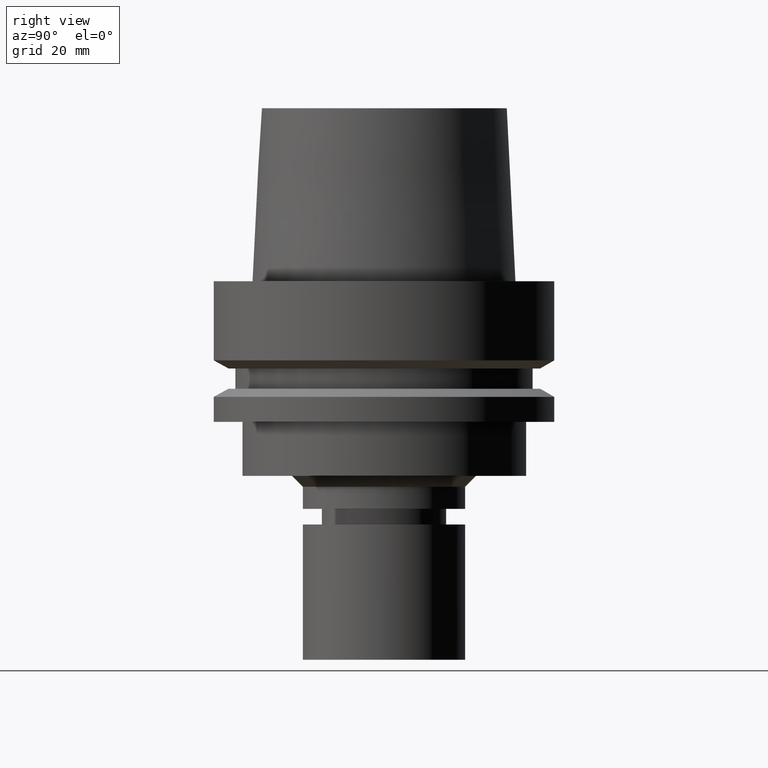
[diagram: clean part render]
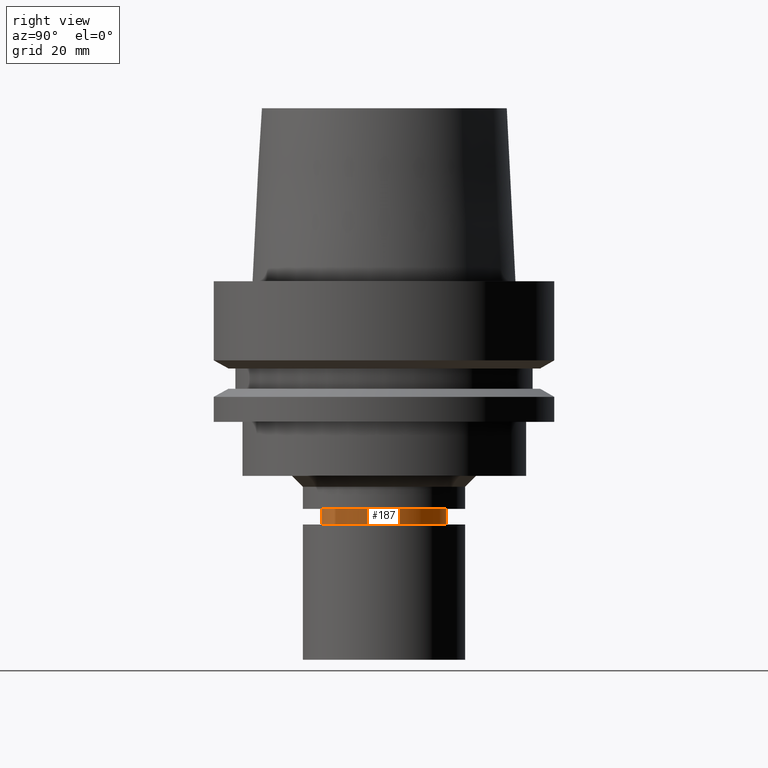
[diagram: same view with one face highlighted and labeled with its STEP entity id]
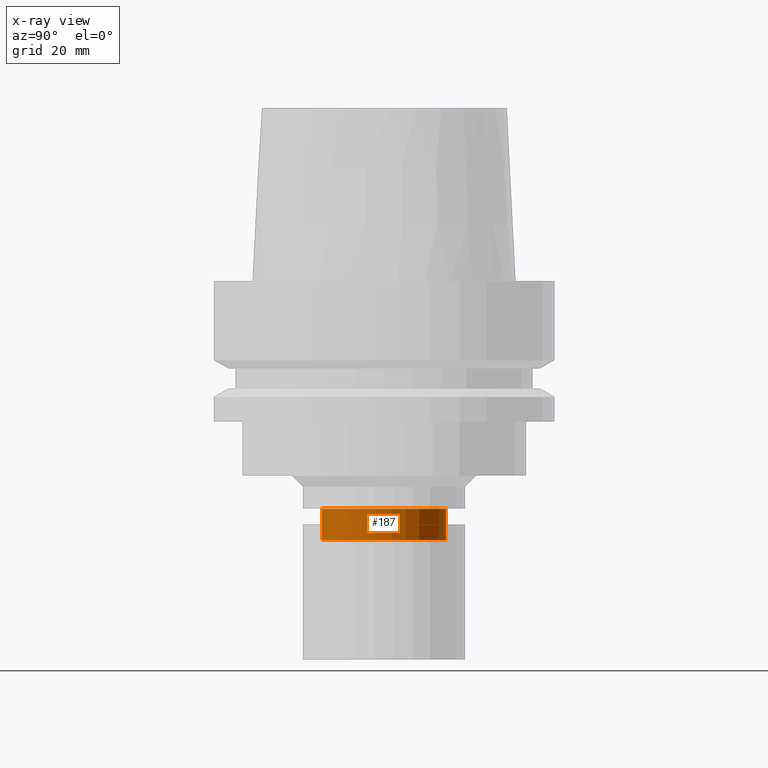
[diagram: x-ray of the same camera — body ghosted, the highlighted face saturated]
A machine part, right view. The second image highlights one B-rep face of the part: STEP entity #187.
The next image is the same camera in x-ray: the body ghosted, the highlighted face saturated — about 0% of this face is hidden behind the body in this view.
In plain terms, the highlighted cylindrical surface (bore or boss wall) has radius 11.5 mm, axis along (-0, -0, 1).
Its self-contained STEP definition (entity closure, byte-faithful):
#103=EDGE_CURVE('Unnamed[1]',#255,#255,#256,.T.);
#132=EDGE_CURVE('Unnamed[1]',#300,#300,#301,.T.);
#187=ADVANCED_FACE('Unnamed[1]',(#384,#385),#386,.T.);
#255=VERTEX_POINT('',#462);
#256=CIRCLE('',#463,11.4999999999907);
#300=VERTEX_POINT('',#519);
#301=CIRCLE('',#520,11.5000000000021);
#384=FACE_BOUND('',#624,.T.);
#385=FACE_BOUND('',#625,.T.);
#386=CYLINDRICAL_SURFACE('',#626,11.4999999999964);
#462=CARTESIAN_POINT('',(2.57788151921109E-015,11.4999999999907,-42.1000001144153));
#463=AXIS2_PLACEMENT_3D('',#691,#692,#693);
#519=CARTESIAN_POINT('',(2.93372253196589E-015,11.5000000000021,-47.9113248653973));
#520=AXIS2_PLACEMENT_3D('',#741,#742,#743);
#624=EDGE_LOOP('',(#832));
#625=EDGE_LOOP('',(#833));
#626=AXIS2_PLACEMENT_3D('',#834,#835,#836);
#691=CARTESIAN_POINT('',(2.57788151921109E-015,5.15576303842218E-015,-42.1000001144152));
#692=DIRECTION('',(-6.12323399573677E-017,-1.22464679914745E-016,1.0));
#693=DIRECTION('',(-1.23259516440785E-032,1.0,1.22464679914745E-016));
#741=CARTESIAN_POINT('',(2.93372253196589E-015,5.86744506393178E-015,-47.9113248653973));
#742=DIRECTION('',(-6.12323399573676E-017,-1.2246467991473E-016,1.0));
#743=DIRECTION('',(-1.2325951644078E-032,1.0,1.2246467991473E-016));
#832=ORIENTED_EDGE('',*,*,#103,.F.);
#833=ORIENTED_EDGE('',*,*,#132,.T.);
#834=CARTESIAN_POINT('',(2.75580202558849E-015,5.51160405117698E-015,-45.0056624899063));
#835=DIRECTION('',(-6.12323399573676E-017,-1.2246467991472E-016,1.0));
#836=DIRECTION('',(-1.23259516440783E-032,1.0,1.2246467991472E-016));